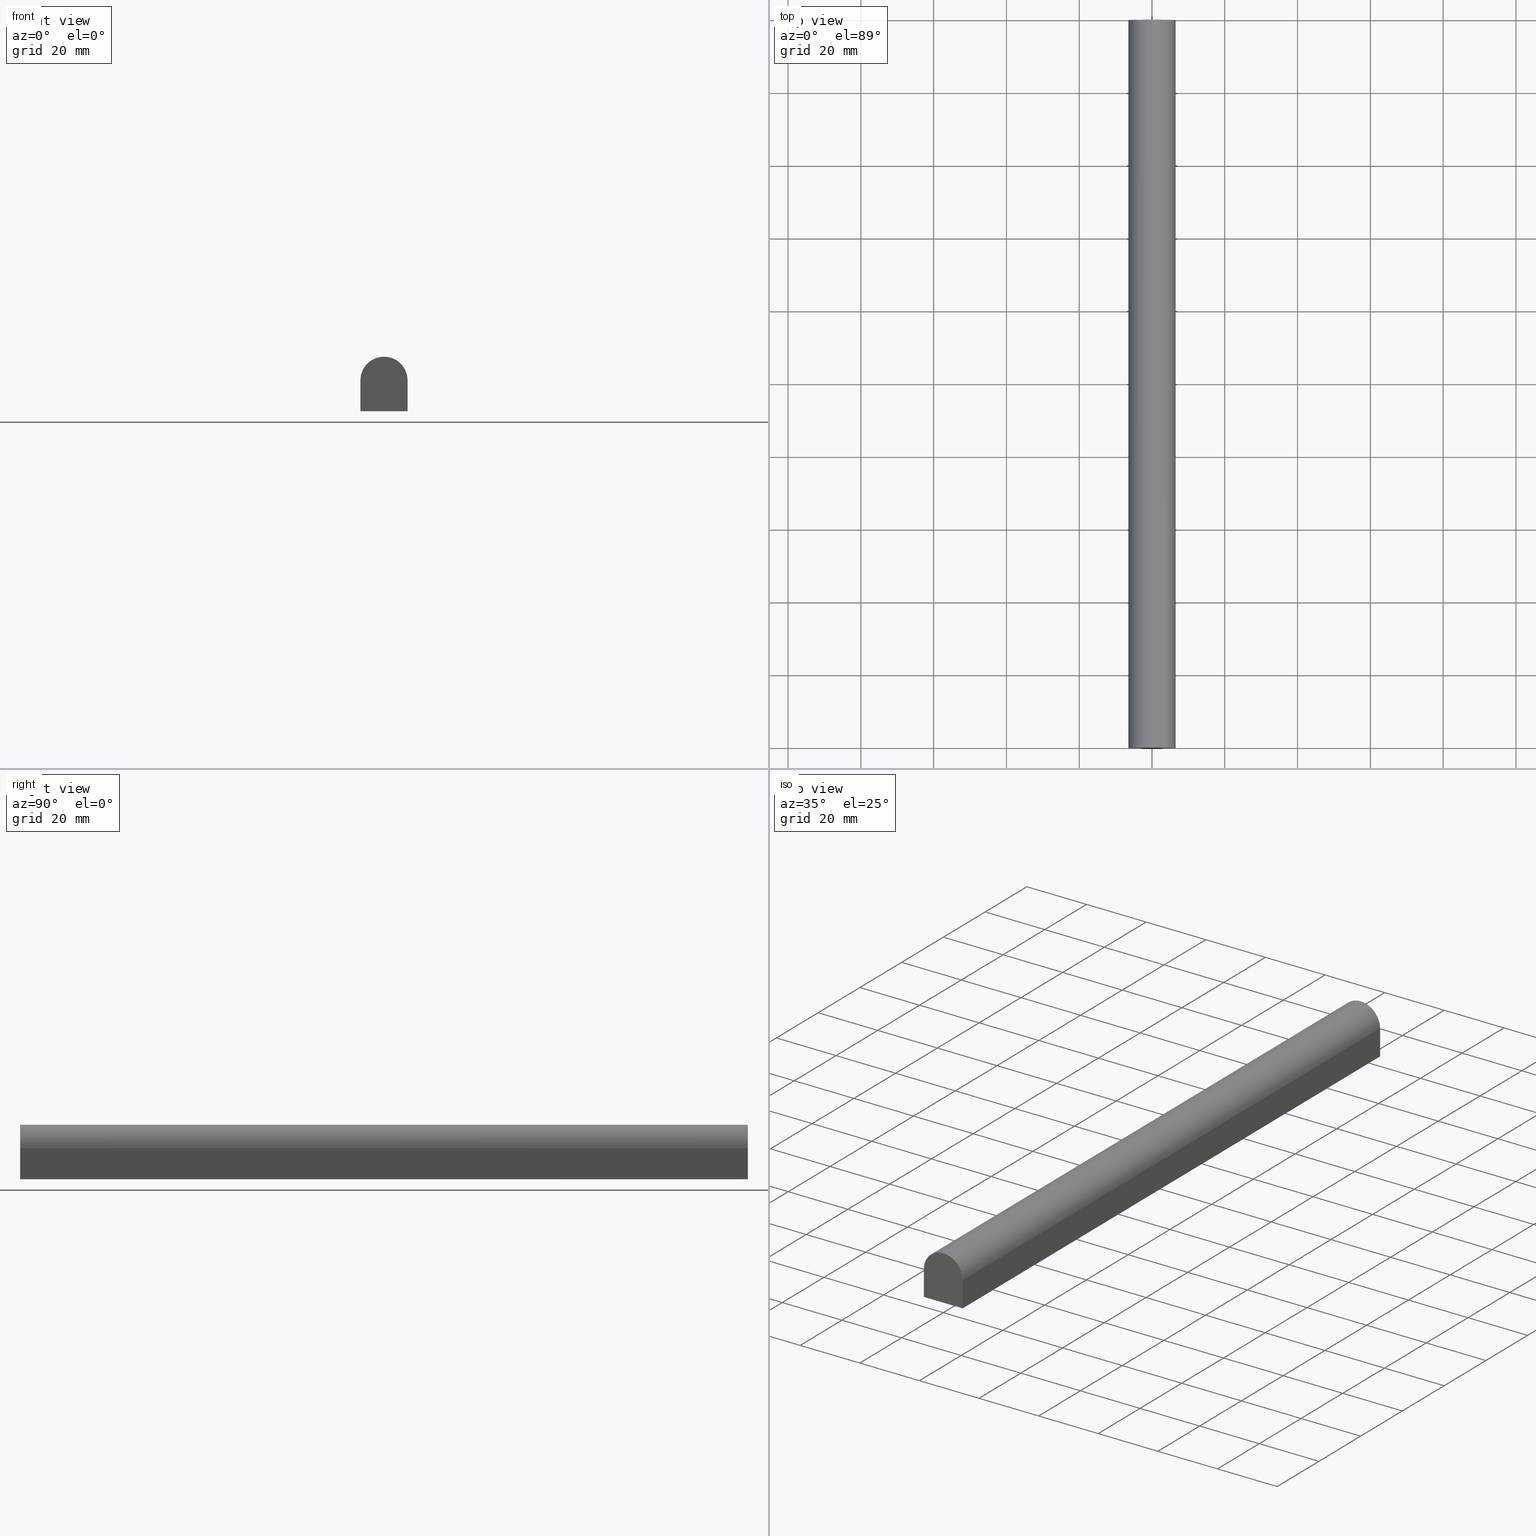
[diagram: canonical four-view strip — front | top / right | iso, engineering-drawing reading convention]
A machine part, canonical four-view strip (front | top / right | iso — engineering-drawing reading convention). The complete STEP part file that produces these views, byte-faithful:
ISO-10303-21;
HEADER;
FILE_DESCRIPTION (( 'STEP AP214' ),
    '1' );
FILE_NAME ('TM_341W_6.STEP',
    '2016-05-10T04:18:46',
    ( '' ),
    ( '' ),
    'SwSTEP 2.0',
    'SolidWorks 2015',
    '' );
FILE_SCHEMA (( 'AUTOMOTIVE_DESIGN' ));
ENDSEC;

DATA;
#1 = PRODUCT_DEFINITION ( 'UNKNOWN', '', #66, #64 ) ;
#2 = DIRECTION ( 'NONE',  ( 0.0000000000000000000, 0.0000000000000000000, 1.000000000000000000 ) ) ;
#3 = CARTESIAN_POINT ( 'NONE',  ( 0.0000000000000000000, 200.0000000000000000, 0.0000000000000000000 ) ) ;
#4 = VECTOR ( 'NONE', #9, 1000.000000000000000 ) ;
#5 = CARTESIAN_POINT ( 'NONE',  ( -6.500000000000000000, 1000.000000000000000, -7.500000000000000000 ) ) ;
#6 = VERTEX_POINT ( 'NONE', #132 ) ;
#7 = PLANE ( 'NONE',  #199 ) ;
#8 = DIRECTION ( 'NONE',  ( 0.0000000000000000000, -1.000000000000000000, 0.0000000000000000000 ) ) ;
#9 = DIRECTION ( 'NONE',  ( -0.0000000000000000000, -0.0000000000000000000, 1.000000000000000000 ) ) ;
#10 = EDGE_CURVE ( 'NONE', #21, #200, #40, .T. ) ;
#11 = DIRECTION ( 'NONE',  ( 0.0000000000000000000, -1.000000000000000000, 0.0000000000000000000 ) ) ;
#12 = AXIS2_PLACEMENT_3D ( 'NONE', #221, #2, #130 ) ;
#13 = EDGE_LOOP ( 'NONE', ( #149, #128, #19, #80 ) ) ;
#14 = PRODUCT_CONTEXT ( 'NONE', #234, 'mechanical' ) ;
#15 = FACE_OUTER_BOUND ( 'NONE', #227, .T. ) ;
#16 = SHAPE_REPRESENTATION ( 'rubber foam', ( #12 ), #184 ) ;
#17 = UNCERTAINTY_MEASURE_WITH_UNIT (LENGTH_MEASURE( 1.000000000000000100E-005 ), #91, 'distance_accuracy_value', 'NONE');
#18 =( GEOMETRIC_REPRESENTATION_CONTEXT ( 3 ) GLOBAL_UNCERTAINTY_ASSIGNED_CONTEXT ( ( #236 ) ) GLOBAL_UNIT_ASSIGNED_CONTEXT ( ( #193, #172, #67 ) ) REPRESENTATION_CONTEXT ( 'NONE', 'WORKASPACE' ) );
#19 = ORIENTED_EDGE ( 'NONE', *, *, #103, .T. ) ;
#20 = FACE_OUTER_BOUND ( 'NONE', #13, .T. ) ;
#21 = VERTEX_POINT ( 'NONE', #194 ) ;
#22 = UNCERTAINTY_MEASURE_WITH_UNIT (LENGTH_MEASURE( 1.000000000000000100E-005 ), #86, 'distance_accuracy_value', 'NONE');
#23 = FILL_AREA_STYLE_COLOUR ( '', #168 ) ;
#24 = CARTESIAN_POINT ( 'NONE',  ( -6.500000000000000000, 200.0000000000000000, 1.000000000000000000 ) ) ;
#25 = STYLED_ITEM ( 'NONE', ( #150 ), #198 ) ;
#26 = ADVANCED_FACE ( 'NONE', ( #169 ), #148, .T. ) ;
#27 = LINE ( 'NONE', #192, #167 ) ;
#28 = CARTESIAN_POINT ( 'NONE',  ( 6.500000000000000000, 1000.000000000000000, -7.500000000000000000 ) ) ;
#29 = PRODUCT_DEFINITION ( 'UNKNOWN', '', #45, #37 ) ;
#30 = CARTESIAN_POINT ( 'NONE',  ( 6.500000000000000000, 1000.000000000000000, 1.000000000000000000 ) ) ;
#31 = COLOUR_RGB ( '',0.7921568627450980000, 0.8196078431372548800, 0.9333333333333333500 ) ;
#32 = SURFACE_STYLE_USAGE ( .BOTH. , #208 ) ;
#33 = CARTESIAN_POINT ( 'NONE',  ( 0.0000000000000000000, 0.0000000000000000000, 0.0000000000000000000 ) ) ;
#34 =( NAMED_UNIT ( * ) SI_UNIT ( $, .STERADIAN. ) SOLID_ANGLE_UNIT ( ) );
#35 = CARTESIAN_POINT ( 'NONE',  ( 6.500000000000000000, 200.0000000000000000, 1.000000000000000000 ) ) ;
#36 = ORIENTED_EDGE ( 'NONE', *, *, #10, .F. ) ;
#37 = PRODUCT_DEFINITION_CONTEXT ( 'detailed design', #141, 'design' ) ;
#38 = VECTOR ( 'NONE', #138, 1000.000000000000000 ) ;
#39 = APPLICATION_PROTOCOL_DEFINITION ( 'draft international standard', 'automotive_design', 1998, #141 ) ;
#40 = LINE ( 'NONE', #164, #157 ) ;
#41 =( NAMED_UNIT ( * ) PLANE_ANGLE_UNIT ( ) SI_UNIT ( $, .RADIAN. ) );
#42 = APPLICATION_CONTEXT ( 'automotive_design' ) ;
#43 = PRESENTATION_LAYER_ASSIGNMENT (  '', '', ( #25 ) ) ;
#44 = ORIENTED_EDGE ( 'NONE', *, *, #92, .T. ) ;
#45 = PRODUCT_DEFINITION_FORMATION_WITH_SPECIFIED_SOURCE ( 'ANY', '', #58, .NOT_KNOWN. ) ;
#46 = DIRECTION ( 'NONE',  ( 0.0000000000000000000, 0.0000000000000000000, 1.000000000000000000 ) ) ;
#47 = SURFACE_SIDE_STYLE ('',( #201 ) ) ;
#48 = DIRECTION ( 'NONE',  ( 0.0000000000000000000, 0.0000000000000000000, -1.000000000000000000 ) ) ;
#49 = ORIENTED_EDGE ( 'NONE', *, *, #131, .F. ) ;
#50 = CARTESIAN_POINT ( 'NONE',  ( -6.500000000000000000, 0.0000000000000000000, 1.000000000000000000 ) ) ;
#51 = CARTESIAN_POINT ( 'NONE',  ( -6.500000000000000000, 1000.000000000000000, -7.500000000000000000 ) ) ;
#52 = EDGE_CURVE ( 'NONE', #200, #63, #104, .T. ) ;
#53 = MECHANICAL_DESIGN_GEOMETRIC_PRESENTATION_REPRESENTATION (  '', ( #25 ), #61 ) ;
#54 = PRODUCT_CONTEXT ( 'NONE', #42, 'mechanical' ) ;
#55 = ORIENTED_EDGE ( 'NONE', *, *, #59, .F. ) ;
#56 = PRODUCT_RELATED_PRODUCT_CATEGORY ( 'part', '', ( #58 ) ) ;
#57 = ORIENTED_EDGE ( 'NONE', *, *, #123, .T. ) ;
#58 = PRODUCT ( 'TM_341W_6', 'TM_341W_6', '', ( #14 ) ) ;
#59 = EDGE_CURVE ( 'NONE', #146, #111, #158, .T. ) ;
#60 = DIRECTION ( 'NONE',  ( -0.0000000000000000000, -1.000000000000000000, -0.0000000000000000000 ) ) ;
#61 =( GEOMETRIC_REPRESENTATION_CONTEXT ( 3 ) GLOBAL_UNCERTAINTY_ASSIGNED_CONTEXT ( ( #17 ) ) GLOBAL_UNIT_ASSIGNED_CONTEXT ( ( #91, #121, #34 ) ) REPRESENTATION_CONTEXT ( 'NONE', 'WORKASPACE' ) );
#62 = DIRECTION ( 'NONE',  ( -0.0000000000000000000, -1.000000000000000000, -0.0000000000000000000 ) ) ;
#63 = VERTEX_POINT ( 'NONE', #24 ) ;
#64 = PRODUCT_DEFINITION_CONTEXT ( 'detailed design', #176, 'design' ) ;
#65 = LINE ( 'NONE', #133, #204 ) ;
#66 = PRODUCT_DEFINITION_FORMATION_WITH_SPECIFIED_SOURCE ( 'ANY', '', #239, .NOT_KNOWN. ) ;
#67 =( NAMED_UNIT ( * ) SI_UNIT ( $, .STERADIAN. ) SOLID_ANGLE_UNIT ( ) );
#68 = DIRECTION ( 'NONE',  ( 0.0000000000000000000, 0.0000000000000000000, 1.000000000000000000 ) ) ;
#69 = ADVANCED_FACE ( 'NONE', ( #211 ), #74, .T. ) ;
#70 = APPLICATION_PROTOCOL_DEFINITION ( 'draft international standard', 'automotive_design', 1998, #176 ) ;
#71 = VECTOR ( 'NONE', #8, 1000.000000000000000 ) ;
#72 = VECTOR ( 'NONE', #120, 1000.000000000000000 ) ;
#73 = PRODUCT_RELATED_PRODUCT_CATEGORY ( 'part', '', ( #239 ) ) ;
#74 = PLANE ( 'NONE',  #183 ) ;
#75 = ORIENTED_EDGE ( 'NONE', *, *, #103, .F. ) ;
#76 = CARTESIAN_POINT ( 'NONE',  ( 6.500000000000000000, 0.0000000000000000000, 0.0000000000000000000 ) ) ;
#77 = CARTESIAN_POINT ( 'NONE',  ( 0.0000000000000000000, 0.0000000000000000000, 1.000000000000000000 ) ) ;
#78 = LINE ( 'NONE', #51, #38 ) ;
#79 = DIRECTION ( 'NONE',  ( -1.000000000000000000, 0.0000000000000000000, 0.0000000000000000000 ) ) ;
#80 = ORIENTED_EDGE ( 'NONE', *, *, #177, .T. ) ;
#81 = DIRECTION ( 'NONE',  ( -0.0000000000000000000, -0.0000000000000000000, 1.000000000000000000 ) ) ;
#82 = DIRECTION ( 'NONE',  ( -0.0000000000000000000, -0.0000000000000000000, -1.000000000000000000 ) ) ;
#83 = MANIFOLD_SOLID_BREP ( '���߰�1', #220 ) ;
#84 = FILL_AREA_STYLE ('',( #230 ) ) ;
#85 = EDGE_CURVE ( 'NONE', #188, #146, #153, .T. ) ;
#86 =( LENGTH_UNIT ( ) NAMED_UNIT ( * ) SI_UNIT ( .MILLI., .METRE. ) );
#87 = ORIENTED_EDGE ( 'NONE', *, *, #85, .T. ) ;
#88 = VECTOR ( 'NONE', #122, 1000.000000000000000 ) ;
#89 = EDGE_LOOP ( 'NONE', ( #57, #87, #218, #202 ) ) ;
#90 = DIRECTION ( 'NONE',  ( 1.000000000000000000, 0.0000000000000000000, 0.0000000000000000000 ) ) ;
#91 =( LENGTH_UNIT ( ) NAMED_UNIT ( * ) SI_UNIT ( .MILLI., .METRE. ) );
#92 = EDGE_CURVE ( 'NONE', #187, #6, #78, .T. ) ;
#93 = CARTESIAN_POINT ( 'NONE',  ( -6.500000000000000000, 200.0000000000000000, 0.0000000000000000000 ) ) ;
#94 = AXIS2_PLACEMENT_3D ( 'NONE', #231, #68, #100 ) ;
#95 = PLANE ( 'NONE',  #175 ) ;
#96 = ORIENTED_EDGE ( 'NONE', *, *, #209, .F. ) ;
#97 = CARTESIAN_POINT ( 'NONE',  ( 0.0000000000000000000, 200.0000000000000000, 1.000000000000000000 ) ) ;
#98 = CARTESIAN_POINT ( 'NONE',  ( -6.500000000000000000, 0.0000000000000000000, 0.0000000000000000000 ) ) ;
#99 =( NAMED_UNIT ( * ) SI_UNIT ( $, .STERADIAN. ) SOLID_ANGLE_UNIT ( ) );
#100 = DIRECTION ( 'NONE',  ( 1.000000000000000000, 0.0000000000000000000, 0.0000000000000000000 ) ) ;
#101 = DIRECTION ( 'NONE',  ( -0.0000000000000000000, 1.000000000000000000, 0.0000000000000000000 ) ) ;
#102 = ORIENTED_EDGE ( 'NONE', *, *, #209, .T. ) ;
#103 = EDGE_CURVE ( 'NONE', #187, #21, #125, .T. ) ;
#104 = CIRCLE ( 'NONE', #127, 6.500000000000000000 ) ;
#105 = EDGE_CURVE ( 'NONE', #111, #6, #219, .T. ) ;
#106 = AXIS2_PLACEMENT_3D ( 'NONE', #180, #145, #238 ) ;
#107 = ORIENTED_EDGE ( 'NONE', *, *, #85, .F. ) ;
#108 =( NAMED_UNIT ( * ) SI_UNIT ( $, .STERADIAN. ) SOLID_ANGLE_UNIT ( ) );
#109 = FACE_OUTER_BOUND ( 'NONE', #144, .T. ) ;
#110 = DIRECTION ( 'NONE',  ( -0.0000000000000000000, 1.000000000000000000, 0.0000000000000000000 ) ) ;
#111 = VERTEX_POINT ( 'NONE', #50 ) ;
#112 = CARTESIAN_POINT ( 'NONE',  ( 6.500000000000000000, 0.0000000000000000000, 1.000000000000000000 ) ) ;
#113 = EDGE_CURVE ( 'NONE', #63, #111, #114, .T. ) ;
#114 = LINE ( 'NONE', #206, #71 ) ;
#115 = DIRECTION ( 'NONE',  ( -1.000000000000000000, 0.0000000000000000000, 0.0000000000000000000 ) ) ;
#116 = DIRECTION ( 'NONE',  ( 1.000000000000000000, -0.0000000000000000000, -0.0000000000000000000 ) ) ;
#117 = CARTESIAN_POINT ( 'NONE',  ( 0.0000000000000000000, 200.0000000000000000, -7.500000000000000000 ) ) ;
#118 = ITEM_DEFINED_TRANSFORMATION ( 'NONE', 'NONE', #106,  #12 ) ;
#119 =( LENGTH_UNIT ( ) NAMED_UNIT ( * ) SI_UNIT ( .MILLI., .METRE. ) );
#120 = DIRECTION ( 'NONE',  ( 1.000000000000000000, -0.0000000000000000000, -0.0000000000000000000 ) ) ;
#121 =( NAMED_UNIT ( * ) PLANE_ANGLE_UNIT ( ) SI_UNIT ( $, .RADIAN. ) );
#122 = DIRECTION ( 'NONE',  ( -0.0000000000000000000, -0.0000000000000000000, -1.000000000000000000 ) ) ;
#123 = EDGE_CURVE ( 'NONE', #6, #188, #27, .T. ) ;
#124 = APPLICATION_PROTOCOL_DEFINITION ( 'draft international standard', 'automotive_design', 1998, #234 ) ;
#125 = LINE ( 'NONE', #117, #72 ) ;
#126 = PRODUCT_DEFINITION_SHAPE ( 'NONE', 'NONE',  #29 ) ;
#127 = AXIS2_PLACEMENT_3D ( 'NONE', #97, #60, #185 ) ;
#128 = ORIENTED_EDGE ( 'NONE', *, *, #92, .F. ) ;
#129 = SHAPE_REPRESENTATION_RELATIONSHIP ( 'NONE' , 'NONE' ,  #16, #198 ) ;
#130 = DIRECTION ( 'NONE',  ( 1.000000000000000000, 0.0000000000000000000, 0.0000000000000000000 ) ) ;
#131 = EDGE_CURVE ( 'NONE', #200, #146, #161, .T. ) ;
#132 = CARTESIAN_POINT ( 'NONE',  ( -6.500000000000000000, 0.0000000000000000000, -7.500000000000000000 ) ) ;
#133 = CARTESIAN_POINT ( 'NONE',  ( 6.500000000000000000, 1000.000000000000000, -7.500000000000000000 ) ) ;
#134 = DIRECTION ( 'NONE',  ( 0.0000000000000000000, 0.0000000000000000000, -1.000000000000000000 ) ) ;
#135 = ORIENTED_EDGE ( 'NONE', *, *, #52, .F. ) ;
#136 = DIRECTION ( 'NONE',  ( 0.0000000000000000000, -1.000000000000000000, 0.0000000000000000000 ) ) ;
#137 = LINE ( 'NONE', #93, #88 ) ;
#138 = DIRECTION ( 'NONE',  ( 0.0000000000000000000, -1.000000000000000000, 0.0000000000000000000 ) ) ;
#139 = CARTESIAN_POINT ( 'NONE',  ( 0.0000000000000000000, 1000.000000000000000, 1.000000000000000000 ) ) ;
#140 = ADVANCED_FACE ( 'NONE', ( #20 ), #95, .T. ) ;
#141 = APPLICATION_CONTEXT ( 'automotive_design' ) ;
#142 = ORIENTED_EDGE ( 'NONE', *, *, #10, .T. ) ;
#143 = STYLED_ITEM ( 'NONE', ( #170 ), #83 ) ;
#144 = EDGE_LOOP ( 'NONE', ( #55, #49, #179, #195 ) ) ;
#145 = DIRECTION ( 'NONE',  ( 0.0000000000000000000, 0.0000000000000000000, 1.000000000000000000 ) ) ;
#146 = VERTEX_POINT ( 'NONE', #112 ) ;
#147 = FILL_AREA_STYLE ('',( #23 ) ) ;
#148 = PLANE ( 'NONE',  #214 ) ;
#149 = ORIENTED_EDGE ( 'NONE', *, *, #123, .F. ) ;
#150 = PRESENTATION_STYLE_ASSIGNMENT (( #163 ) ) ;
#151 = CARTESIAN_POINT ( 'NONE',  ( -6.500000000000000000, 1000.000000000000000, 1.000000000000000000 ) ) ;
#152 = DIRECTION ( 'NONE',  ( 1.000000000000000000, 0.0000000000000000000, 0.0000000000000000000 ) ) ;
#153 = LINE ( 'NONE', #76, #4 ) ;
#154 = ORIENTED_EDGE ( 'NONE', *, *, #131, .T. ) ;
#155 = APPLICATION_PROTOCOL_DEFINITION ( 'draft international standard', 'automotive_design', 1998, #42 ) ;
#156 = VECTOR ( 'NONE', #205, 1000.000000000000000 ) ;
#157 = VECTOR ( 'NONE', #81, 1000.000000000000000 ) ;
#158 = CIRCLE ( 'NONE', #189, 6.500000000000000000 ) ;
#159 = ORIENTED_EDGE ( 'NONE', *, *, #113, .F. ) ;
#160 = PRODUCT_DEFINITION_SHAPE ( 'NONE', 'NONE',  #241 ) ;
#161 = LINE ( 'NONE', #30, #156 ) ;
#162 = SHAPE_DEFINITION_REPRESENTATION ( #225, #16 ) ;
#163 = SURFACE_STYLE_USAGE ( .BOTH. , #47 ) ;
#164 = CARTESIAN_POINT ( 'NONE',  ( 6.500000000000000000, 200.0000000000000000, 0.0000000000000000000 ) ) ;
#165 = EDGE_LOOP ( 'NONE', ( #107, #240, #142, #154 ) ) ;
#166 = DIRECTION ( 'NONE',  ( 0.0000000000000000000, 0.0000000000000000000, 1.000000000000000000 ) ) ;
#167 = VECTOR ( 'NONE', #116, 1000.000000000000000 ) ;
#168 = COLOUR_RGB ( '',0.7921568627450980000, 0.8196078431372548800, 0.9333333333333333500 ) ;
#169 = FACE_OUTER_BOUND ( 'NONE', #181, .T. ) ;
#170 = PRESENTATION_STYLE_ASSIGNMENT (( #32 ) ) ;
#171 = PRESENTATION_LAYER_ASSIGNMENT (  '', '', ( #143 ) ) ;
#172 =( NAMED_UNIT ( * ) PLANE_ANGLE_UNIT ( ) SI_UNIT ( $, .RADIAN. ) );
#173 = PLANE ( 'NONE',  #237 ) ;
#174 = UNCERTAINTY_MEASURE_WITH_UNIT (LENGTH_MEASURE( 1.000000000000000100E-005 ), #119, 'distance_accuracy_value', 'NONE');
#175 = AXIS2_PLACEMENT_3D ( 'NONE', #5, #134, #79 ) ;
#176 = APPLICATION_CONTEXT ( 'automotive_design' ) ;
#177 = EDGE_CURVE ( 'NONE', #21, #188, #65, .T. ) ;
#178 = CYLINDRICAL_SURFACE ( 'NONE', #223, 6.500000000000000000 ) ;
#179 = ORIENTED_EDGE ( 'NONE', *, *, #52, .T. ) ;
#180 = CARTESIAN_POINT ( 'NONE',  ( 0.0000000000000000000, 0.0000000000000000000, 0.0000000000000000000 ) ) ;
#181 = EDGE_LOOP ( 'NONE', ( #75, #96, #135, #36 ) ) ;
#182 = FACE_OUTER_BOUND ( 'NONE', #89, .T. ) ;
#183 = AXIS2_PLACEMENT_3D ( 'NONE', #28, #203, #48 ) ;
#184 =( GEOMETRIC_REPRESENTATION_CONTEXT ( 3 ) GLOBAL_UNCERTAINTY_ASSIGNED_CONTEXT ( ( #174 ) ) GLOBAL_UNIT_ASSIGNED_CONTEXT ( ( #119, #229, #99 ) ) REPRESENTATION_CONTEXT ( 'NONE', 'WORKASPACE' ) );
#185 = DIRECTION ( 'NONE',  ( 0.0000000000000000000, 0.0000000000000000000, 1.000000000000000000 ) ) ;
#186 = ADVANCED_FACE ( 'NONE', ( #15 ), #7, .T. ) ;
#187 = VERTEX_POINT ( 'NONE', #190 ) ;
#188 = VERTEX_POINT ( 'NONE', #224 ) ;
#189 = AXIS2_PLACEMENT_3D ( 'NONE', #77, #62, #166 ) ;
#190 = CARTESIAN_POINT ( 'NONE',  ( -6.500000000000000000, 200.0000000000000000, -7.500000000000000000 ) ) ;
#191 = SHAPE_REPRESENTATION ( 'TM_341W_6', ( #228, #106 ), #215 ) ;
#192 = CARTESIAN_POINT ( 'NONE',  ( 0.0000000000000000000, 0.0000000000000000000, -7.500000000000000000 ) ) ;
#193 =( LENGTH_UNIT ( ) NAMED_UNIT ( * ) SI_UNIT ( .MILLI., .METRE. ) );
#194 = CARTESIAN_POINT ( 'NONE',  ( 6.500000000000000000, 200.0000000000000000, -7.500000000000000000 ) ) ;
#195 = ORIENTED_EDGE ( 'NONE', *, *, #113, .T. ) ;
#196 =( REPRESENTATION_RELATIONSHIP ('NONE','NONE', #191, #16 ) REPRESENTATION_RELATIONSHIP_WITH_TRANSFORMATION ( #118 )SHAPE_REPRESENTATION_RELATIONSHIP( ) );
#197 = MECHANICAL_DESIGN_GEOMETRIC_PRESENTATION_REPRESENTATION (  '', ( #143 ), #18 ) ;
#198 = ADVANCED_BREP_SHAPE_REPRESENTATION ( '', ( #83, #12 ), #184 ) ;
#199 = AXIS2_PLACEMENT_3D ( 'NONE', #151, #115, #226 ) ;
#200 = VERTEX_POINT ( 'NONE', #35 ) ;
#201 = SURFACE_STYLE_FILL_AREA ( #147 ) ;
#202 = ORIENTED_EDGE ( 'NONE', *, *, #105, .T. ) ;
#203 = DIRECTION ( 'NONE',  ( 1.000000000000000000, 0.0000000000000000000, 0.0000000000000000000 ) ) ;
#204 = VECTOR ( 'NONE', #136, 1000.000000000000000 ) ;
#205 = DIRECTION ( 'NONE',  ( 0.0000000000000000000, -1.000000000000000000, 0.0000000000000000000 ) ) ;
#206 = CARTESIAN_POINT ( 'NONE',  ( -6.500000000000000000, 1000.000000000000000, 1.000000000000000000 ) ) ;
#207 = CONTEXT_DEPENDENT_SHAPE_REPRESENTATION ( #196, #160 ) ;
#208 = SURFACE_SIDE_STYLE ('',( #216 ) ) ;
#209 = EDGE_CURVE ( 'NONE', #63, #187, #137, .T. ) ;
#210 = CARTESIAN_POINT ( 'NONE',  ( 0.0000000000000000000, 0.0000000000000000000, 0.0000000000000000000 ) ) ;
#211 = FACE_OUTER_BOUND ( 'NONE', #165, .T. ) ;
#212 = ADVANCED_FACE ( 'NONE', ( #109 ), #178, .T. ) ;
#213 = VECTOR ( 'NONE', #82, 1000.000000000000000 ) ;
#214 = AXIS2_PLACEMENT_3D ( 'NONE', #3, #110, #222 ) ;
#215 =( GEOMETRIC_REPRESENTATION_CONTEXT ( 3 ) GLOBAL_UNCERTAINTY_ASSIGNED_CONTEXT ( ( #22 ) ) GLOBAL_UNIT_ASSIGNED_CONTEXT ( ( #86, #41, #108 ) ) REPRESENTATION_CONTEXT ( 'NONE', 'WORKASPACE' ) );
#216 = SURFACE_STYLE_FILL_AREA ( #84 ) ;
#217 = SHAPE_DEFINITION_REPRESENTATION ( #126, #191 ) ;
#218 = ORIENTED_EDGE ( 'NONE', *, *, #59, .T. ) ;
#219 = LINE ( 'NONE', #98, #213 ) ;
#220 = CLOSED_SHELL ( 'NONE', ( #140, #69, #212, #186, #26, #233 ) ) ;
#221 = CARTESIAN_POINT ( 'NONE',  ( 0.0000000000000000000, 0.0000000000000000000, 0.0000000000000000000 ) ) ;
#222 = DIRECTION ( 'NONE',  ( 1.000000000000000000, 0.0000000000000000000, 0.0000000000000000000 ) ) ;
#223 = AXIS2_PLACEMENT_3D ( 'NONE', #139, #11, #232 ) ;
#224 = CARTESIAN_POINT ( 'NONE',  ( 6.500000000000000000, 0.0000000000000000000, -7.500000000000000000 ) ) ;
#225 = PRODUCT_DEFINITION_SHAPE ( 'NONE', 'NONE',  #1 ) ;
#226 = DIRECTION ( 'NONE',  ( 0.0000000000000000000, 0.0000000000000000000, 1.000000000000000000 ) ) ;
#227 = EDGE_LOOP ( 'NONE', ( #235, #159, #102, #44 ) ) ;
#228 = AXIS2_PLACEMENT_3D ( 'NONE', #33, #46, #90 ) ;
#229 =( NAMED_UNIT ( * ) PLANE_ANGLE_UNIT ( ) SI_UNIT ( $, .RADIAN. ) );
#230 = FILL_AREA_STYLE_COLOUR ( '', #31 ) ;
#231 = CARTESIAN_POINT ( 'NONE',  ( 0.0000000000000000000, 0.0000000000000000000, 0.0000000000000000000 ) ) ;
#232 = DIRECTION ( 'NONE',  ( 0.0000000000000000000, 0.0000000000000000000, -1.000000000000000000 ) ) ;
#233 = ADVANCED_FACE ( 'NONE', ( #182 ), #173, .F. ) ;
#234 = APPLICATION_CONTEXT ( 'automotive_design' ) ;
#235 = ORIENTED_EDGE ( 'NONE', *, *, #105, .F. ) ;
#236 = UNCERTAINTY_MEASURE_WITH_UNIT (LENGTH_MEASURE( 1.000000000000000100E-005 ), #193, 'distance_accuracy_value', 'NONE');
#237 = AXIS2_PLACEMENT_3D ( 'NONE', #210, #101, #152 ) ;
#238 = DIRECTION ( 'NONE',  ( 1.000000000000000000, 0.0000000000000000000, 0.0000000000000000000 ) ) ;
#239 = PRODUCT ( 'rubber foam', 'rubber foam', '', ( #54 ) ) ;
#240 = ORIENTED_EDGE ( 'NONE', *, *, #177, .F. ) ;
#241 = NEXT_ASSEMBLY_USAGE_OCCURRENCE ( 'NAUO1', ' ', ' ', #29, #1, $ ) ;
ENDSEC;
END-ISO-10303-21;
